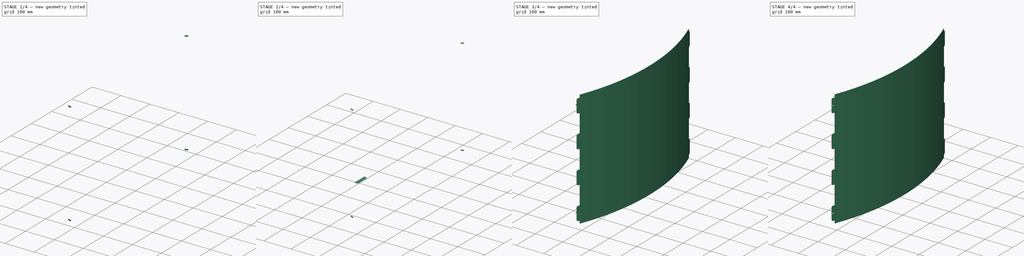
[diagram: build sequence overview — one tinted view per stage of 4, left to right]
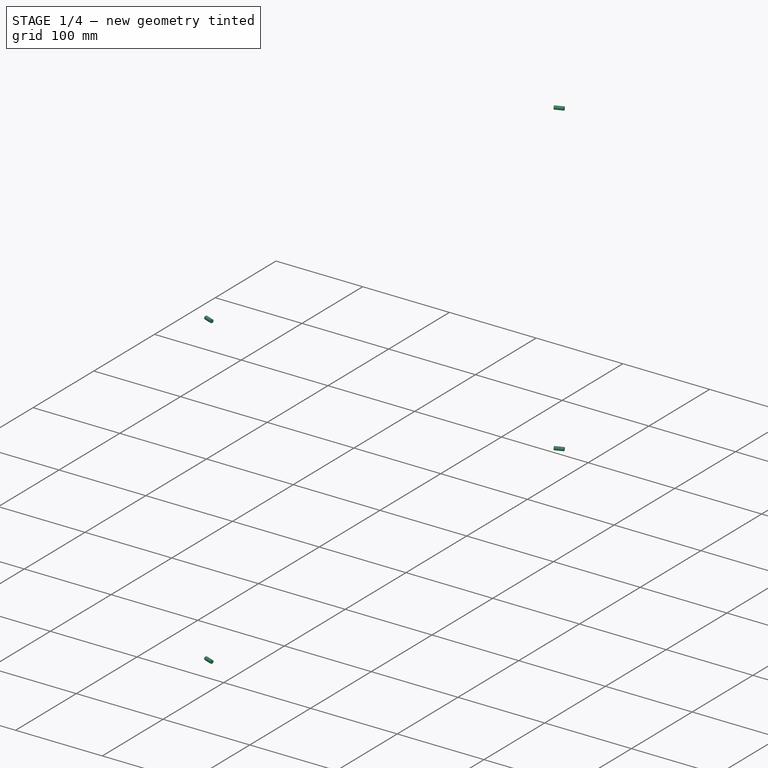
[diagram: stage 1 of 4 — iso view after this stage's code; geometry added in this stage tinted green]
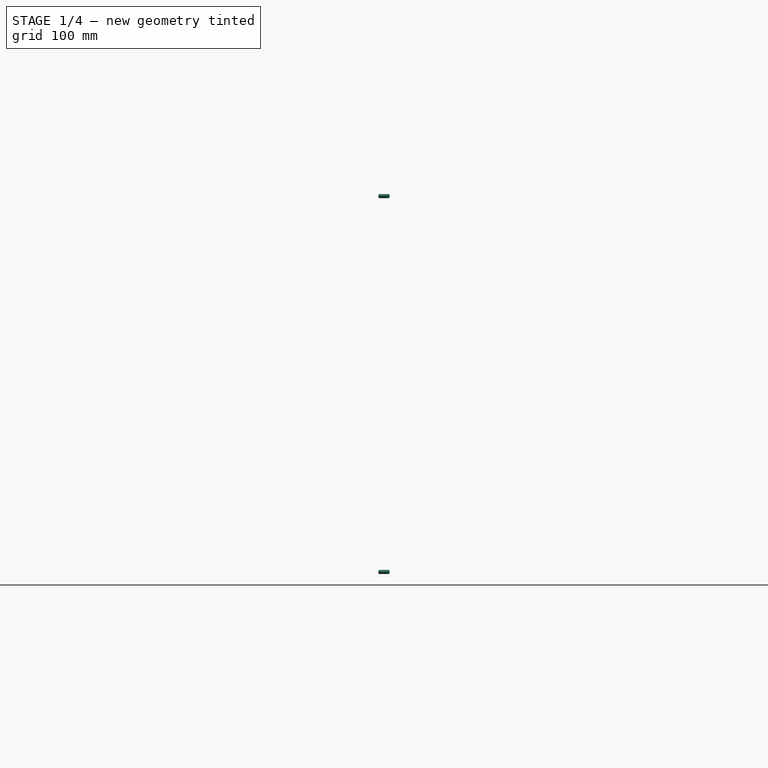
[diagram: stage 1 of 4 — front view after this stage's code; geometry added in this stage tinted green]
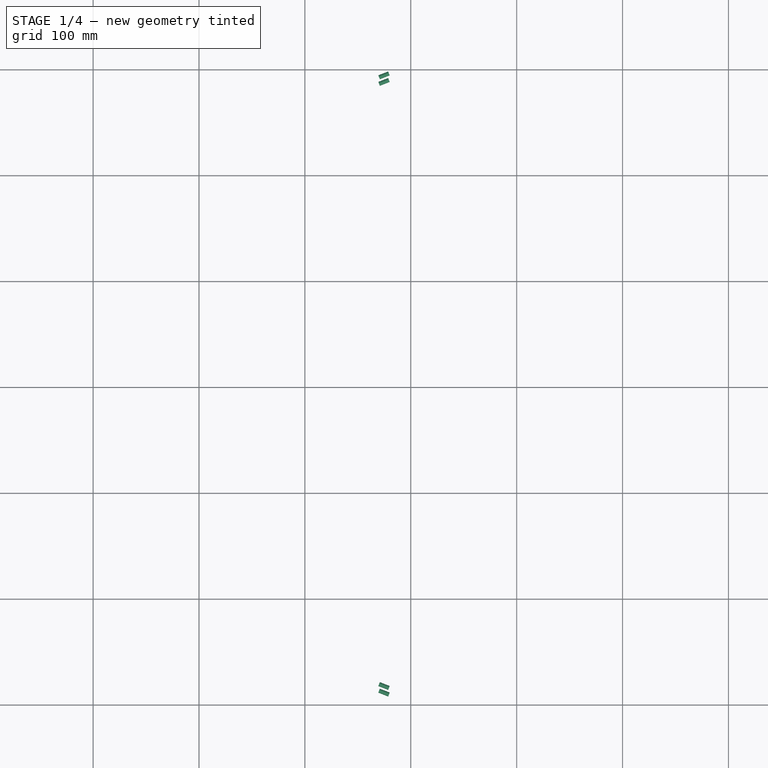
[diagram: stage 1 of 4 — top view after this stage's code; geometry added in this stage tinted green]
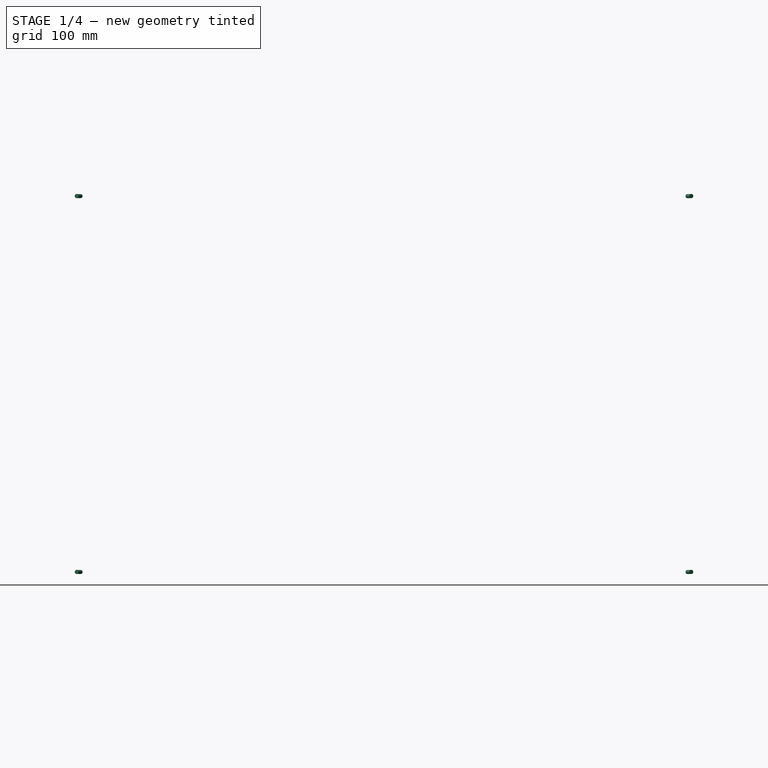
[diagram: stage 1 of 4 — right view after this stage's code; geometry added in this stage tinted green]
FCSTD DOCUMENT  (FreeCAD 1.1R38827 (Git))
Label: composit_stand3_bottom_shield_model
License: All rights reserved
LicenseURL: http://en.wikipedia.org/wiki/All_rights_reserved
objects: Part::FeaturePython×15, PartDesign::SubShapeBinder×3, PartDesign::FeaturePython×2, PartDesign::Body×2, App::Link×2, Part::Feature×2, Part::MultiFuse×2, PartDesign::Boolean×2, Part::Mirroring×1, Part::Extrusion×1, Part::Cylinder×1, Sketcher::SketchObject×1, PartDesign::CoordinateSystem×1
note: 38 computed .brp shape members not serialized (recipe doc carries the construction recipe); baked Part::Feature solids carry a one-line shape summary decoded from their .brp
EXTERNAL_REF file=composit_stand3_bottom_shield_main.FCStd obj=Sketch
EXTERNAL_REF file=composit_stand3_bottom_shield_main.FCStd obj=Sketch001
EXTERNAL_REF file=composit_stand3_bottom_shield_main.FCStd obj=LinearArray
EXTERNAL_REF file=composit_stand3_bottom_shield_main.FCStd obj=Placment

FEATURE [App::Link] Link  label="fix_placements"
  LinkedObject = -> <external composit_stand3_bottom_shield_main.FCStd>#LinearArray
FEATURE [Part::FeaturePython] Placment001  # WARN: FeaturePython — macro-defined, semantics opaque (R4)
  AttacherType = Attacher::AttachEngine3D
  ExposePlacement = true
  MarkerShape = 1
  MarkerSize = 50
  NumElements = 1
  Placement = pos=(0,0,0) rot=(-0.435046,-0.636685,0.636685;2.32089rad)
  Type = lattice2AttachablePlacement.AttachablePlacement
  isLattice = 1
  expr: .Placement.Rotation.Yaw = composit_stand3_bottom_shield_main#Sketch.Constraints.angle
FEATURE [Part::Cylinder] Cylinder  label="fix_cyl"
  Angle = 360
  AttacherType = Attacher::AttachEngine3D
  FirstAngle = 0
  Height = 10
  Radius = 2
  SecondAngle = 0
FEATURE [Part::FeaturePython] LinearArray  # WARN: FeaturePython — macro-defined, semantics opaque (R4)
  Alignment = 0
  CellStart = A1
  Count = 2
  Dir = (0,0,1)
  DirIsDriven = true
  DistributionLaw = 0
  DrivenProperty = 1
  EndInclusive = true
  ExposePlacement = false
  GeneratorMode = 0
  MarkerShape = 1
  MarkerSize = 0
  NumElements = 2
  OrientMode = 0
  Point = (0,0,0)
  PointIsDriven = true
  Reverse = false
  SpanEnd = 390
  SpanStart = 35
  Step = 355
  Type = lattice2LinearArray.LinearArray
  VSGVersion = 1
  Values = 35.0 | 390.0
  ValuesSource = 2
  isLattice = 1
  expr: SpanEnd = <<fix_placements>>.SpanEnd
  expr: SpanStart = <<fix_placements>>.SpanStart
FEATURE [Part::FeaturePython] Placment002  # WARN: FeaturePython — macro-defined, semantics opaque (R4)
  AttacherType = Attacher::AttachEngine3D
  AttachmentOffset = pos=(5.5,0,0) rot=(0,0,1;0rad)
  AttachmentSupport = -> [Placment001]
  ExposePlacement = true
  MapMode = 2
  MarkerShape = 1
  MarkerSize = 10
  NumElements = 1
  Placement = pos=(-1.99881,5.12394,-3e-16) rot=(0.435046,0.636685,-0.636685;3.96229rad)
  Type = lattice2AttachablePlacement.AttachablePlacement
  isLattice = 1
FEATURE [Part::FeaturePython] Populate003  label="Populate LinearArray with Placment002"  # WARN: FeaturePython — macro-defined, semantics opaque (R4)
  Copying = 0
  ExposePlacement = false
  MarkerShape = 1
  MarkerSize = 0
  NumElements = 2
  Object = -> Placment002
  OutputCompounding = 0
  PlacementsTo = -> LinearArray
  Referencing = 0
  Type = lattice2PopulateCopies.LatticePopulateCopies
  isLattice = 1
FEATURE [Sketcher::SketchObject] Sketch
  ArcFitTolerance = 0
  ExternalGeometry = -> [Binder]
  FullyConstrained = true
  MakeInternals = false
  expr: Constraints[3] = composit_stand3_bottom_shield_main#<<main_sketch>>.Constraints.angle - 180 deg
  sketch-geometry (2):
    g0: LineSegment StartX=181.794 StartY=283.998 StartZ=0 EndX=292.58 EndY=0 EndZ=0
    g1: LineSegment StartX=292.58 StartY=0 StartZ=0 EndX=181.794 EndY=-283.998 EndZ=0
  constraints (5):
    c: Coincident(g0,g1)
    c: Symmetric(g1,g0,g-1)
    c: PointOnObject(g0,g-1)
    c: Angle(g0) = -1.19886
    c: Coincident(g0,g-3)
FEATURE [PartDesign::CoordinateSystem] Local_CS  label="base_LCS"
  AttacherType = Attacher::AttachEngine3D
  AttachmentSupport = -> [XY_Plane]
  MapMode = 5
FEATURE [Part::Feature] Link008  label="sector_plexiglass_material_0.30ansi001"
  Placement = pos=(0,0,0) rot=(0,0,1;1.5708rad)
  shape: bbox 58.56 x 590.7 x 425 mm, 70 faces (baked)
FEATURE [App::Link] Link009  label="edge_placement"
  LinkTransform = true
  LinkedObject = -> <external composit_stand3_bottom_shield_main.FCStd>#Placment
FEATURE [Part::FeaturePython] Populate004  label="Populate Placment with Populate LinearArray with Placment002"  # WARN: FeaturePython — macro-defined, semantics opaque (R4)
  Copying = 0
  ExposePlacement = false
  MarkerShape = 1
  MarkerSize = 0
  NumElements = 2
  Object = -> Populate003
  OutputCompounding = 0
  PlacementsTo = -> Link009
  Referencing = 0
  Type = lattice2PopulateCopies.LatticePopulateCopies
  isLattice = 1
FEATURE [Part::FeaturePython] Mirror001  label="Mirror001 of Populate Placment with Populate LinearArray with Placment002"  # WARN: FeaturePython — macro-defined, semantics opaque (R4)
  ExposePlacement = false
  FlipX = false
  FlipY = true
  FlipZ = false
  MarkerShape = 1
  MarkerSize = 0
  NumElements = 2
  Object = -> Populate004
  ObjectTraversal = 0
  Type = lattice2Mirror.LatticeMirror
  isLattice = 1
FEATURE [Part::FeaturePython] Join001  # WARN: FeaturePython — macro-defined, semantics opaque (R4)
  ExposePlacement = false
  Interleave = false
  Links = -> [Populate004,Mirror001]
  MarkerShape = 1
  MarkerSize = 0
  NumElements = 4
  Type = lattice2JoinArrays.JoinArrays
  isLattice = 1
FEATURE [Part::FeaturePython] Populate005  label="Populate Join001 with fix_cyl"  # WARN: FeaturePython — macro-defined, semantics opaque (R4)
  Copying = 0
  ExposePlacement = false
  MarkerShape = 1
  MarkerSize = 0
  NumElements = 0
  Object = -> Cylinder
  OutputCompounding = 1
  PlacementsTo = -> Join001
  Referencing = 0
  Type = lattice2PopulateCopies.LatticePopulateCopies
  isLattice = 0
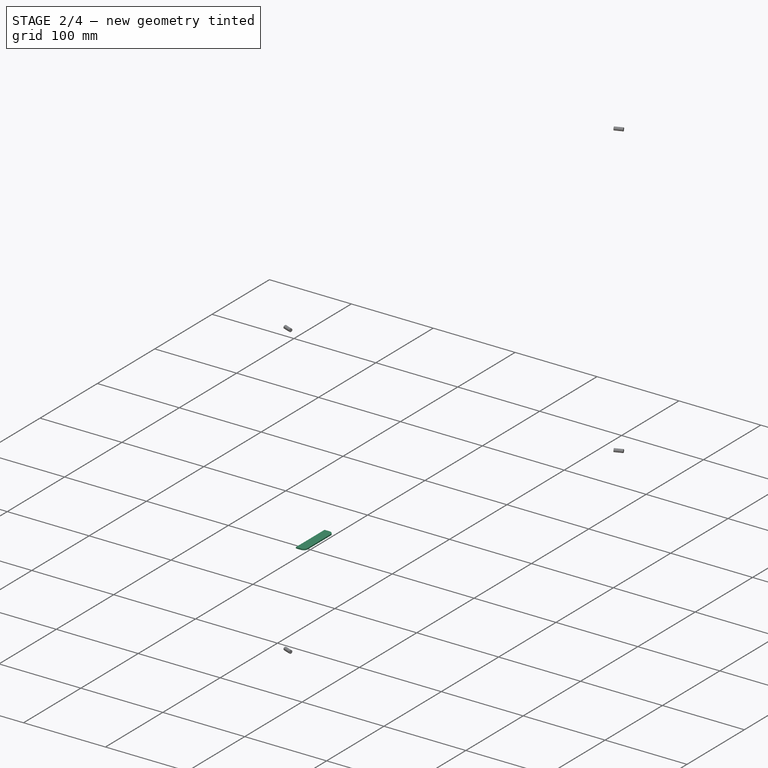
[diagram: stage 2 of 4 — iso view after this stage's code; geometry added in this stage tinted green]
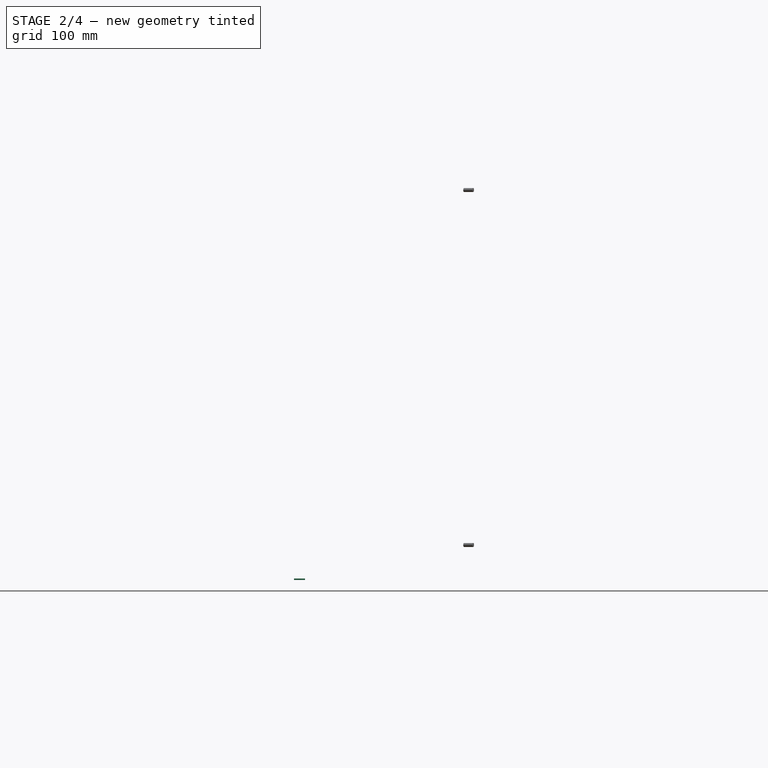
[diagram: stage 2 of 4 — front view after this stage's code; geometry added in this stage tinted green]
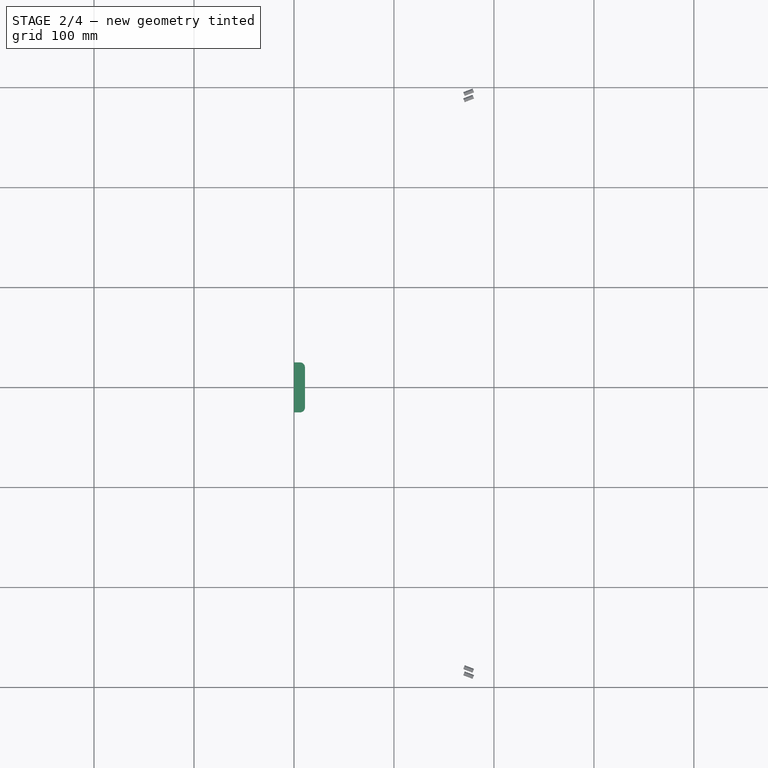
[diagram: stage 2 of 4 — top view after this stage's code; geometry added in this stage tinted green]
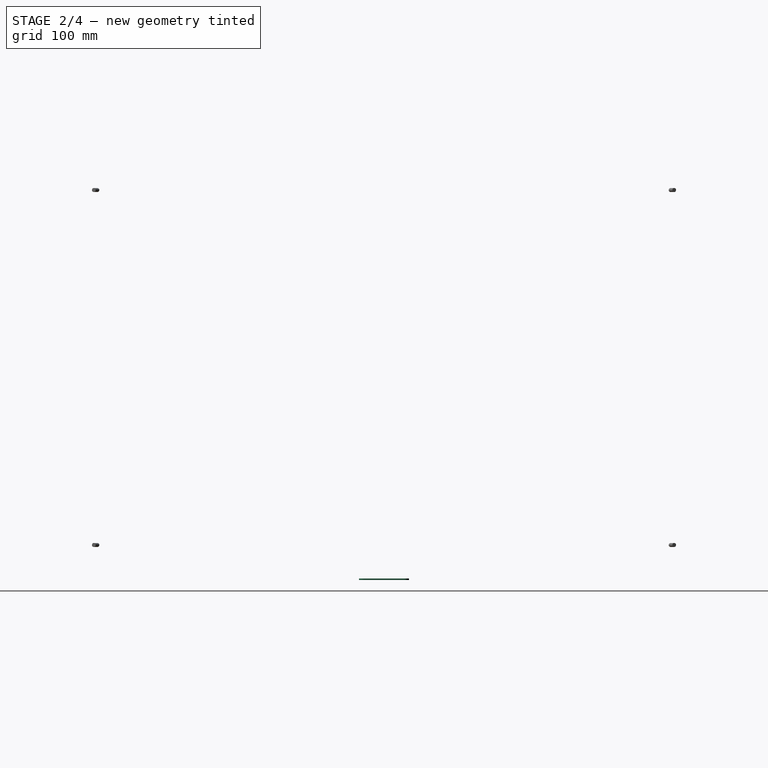
[diagram: stage 2 of 4 — right view after this stage's code; geometry added in this stage tinted green]
FEATURE [PartDesign::SubShapeBinder] Binder
  BindCopyOnChange = 0
  BindMode = 0
  ClaimChildren = true
  Fuse = false
  MakeFace = true
  OffsetFill = false
  OffsetIntersection = false
  OffsetJoinType = 0
  OffsetOpenResult = false
  PartialLoad = false
  Relative = false
  Support = -> [<external composit_stand3_bottom_shield_main.FCStd>#Sketch]
  _Version = 2
FEATURE [PartDesign::SubShapeBinder] Binder001
  BindCopyOnChange = 0
  BindMode = 0
  ClaimChildren = true
  Context = -> Body [Binder001.]
  Fuse = false
  MakeFace = true
  OffsetFill = false
  OffsetIntersection = false
  OffsetJoinType = 0
  OffsetOpenResult = false
  PartialLoad = false
  Relative = false
  Support = -> [Sketch]
  _Version = 2
FEATURE [PartDesign::FeaturePython] BaseBend  # WARN: FeaturePython — macro-defined, semantics opaque (R4)
  BendSide = 0
  BendSketch = -> Binder001
  MidPlane = false
  Reverse = false
  Suppressed = false
  length = 425
  radius = 779.545
  thickness = 1.5
  expr: radius = composit_stand3_bottom_shield_main#<<main_sketch>>.Constraints.r - 5 mm
FEATURE [PartDesign::Body] Body001
  AllowCompound = false
  Origin = -> Origin001
FEATURE [PartDesign::SubShapeBinder] Binder002
  BindCopyOnChange = 0
  BindMode = 0
  ClaimChildren = true
  Fuse = false
  MakeFace = true
  OffsetFill = false
  OffsetIntersection = false
  OffsetJoinType = 0
  OffsetOpenResult = false
  PartialLoad = false
  Relative = false
  Support = -> [<external composit_stand3_bottom_shield_main.FCStd>#Sketch001]
  _Version = 2
FEATURE [Part::Mirroring] Part__Mirroring001  label="Binder002 (Mirror #2)"
  Base = (0,0,0)
  Normal = (0,1,0)
  Source = -> Binder002
FEATURE [Part::FeaturePython] Connect001  # WARN: FeaturePython — macro-defined, semantics opaque (R4)
  Objects = -> [Binder002,Part__Mirroring001]
  Tolerance = 0
FEATURE [Part::Extrusion] Extrude
  Base = -> Connect001
  Dir = (0,0,1)
  DirMode = 2
  FaceMakerClass = Part::FaceMakerBullseye
  FaceMakerMode = 3
  LengthFwd = 1.5
  LengthRev = 0
  Solid = true
  Symmetric = false
  expr: LengthFwd = <<BaseBend>>.thickness
FEATURE [Part::MultiFuse] Fusion001
  Shapes = -> [Populate005]
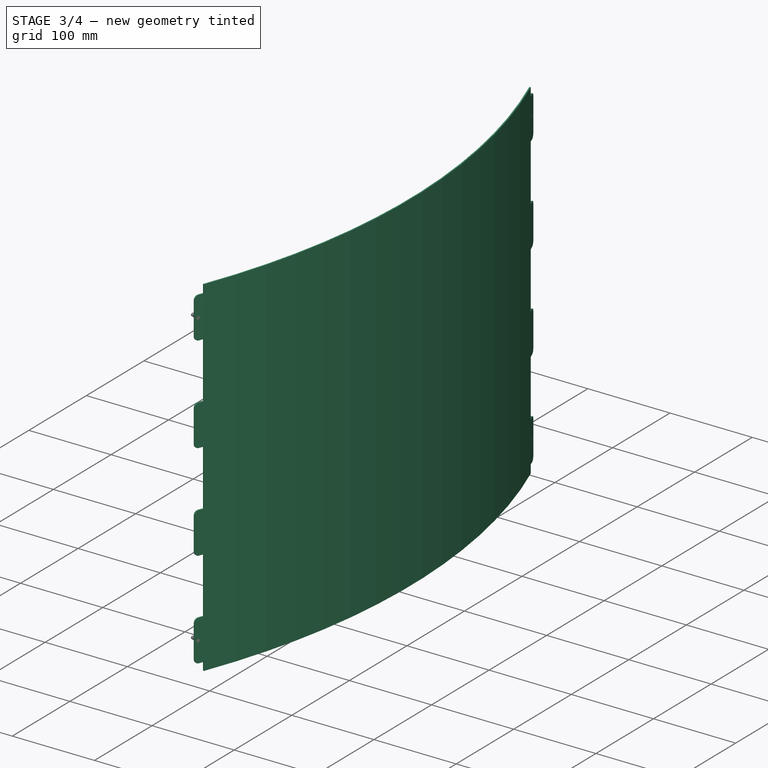
[diagram: stage 3 of 4 — iso view after this stage's code; geometry added in this stage tinted green]
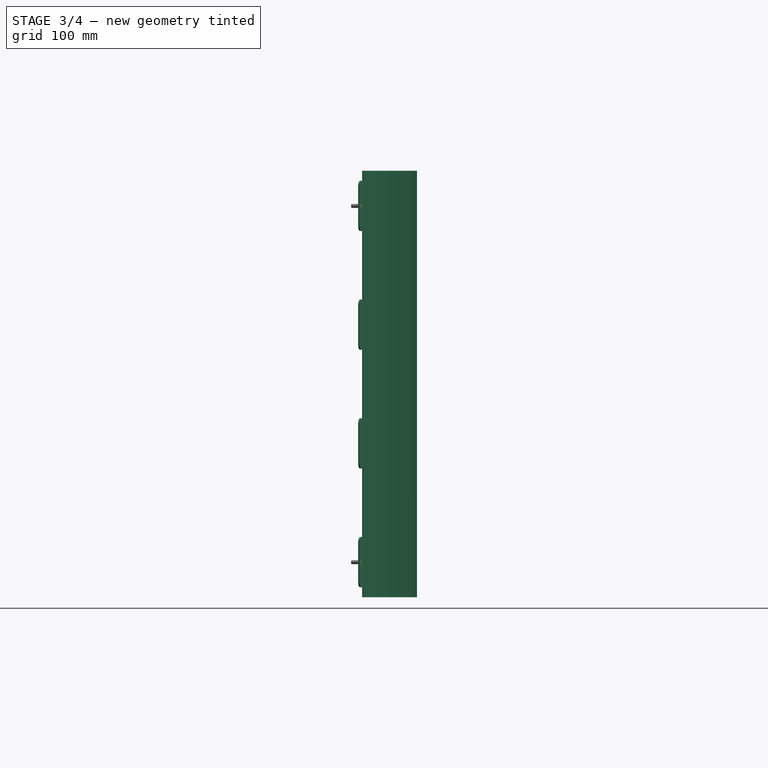
[diagram: stage 3 of 4 — front view after this stage's code; geometry added in this stage tinted green]
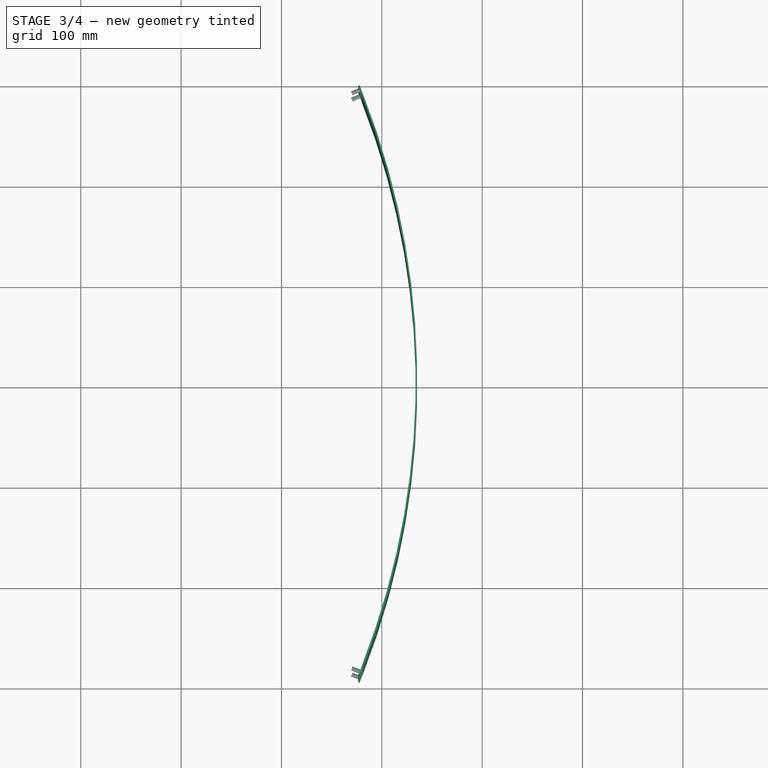
[diagram: stage 3 of 4 — top view after this stage's code; geometry added in this stage tinted green]
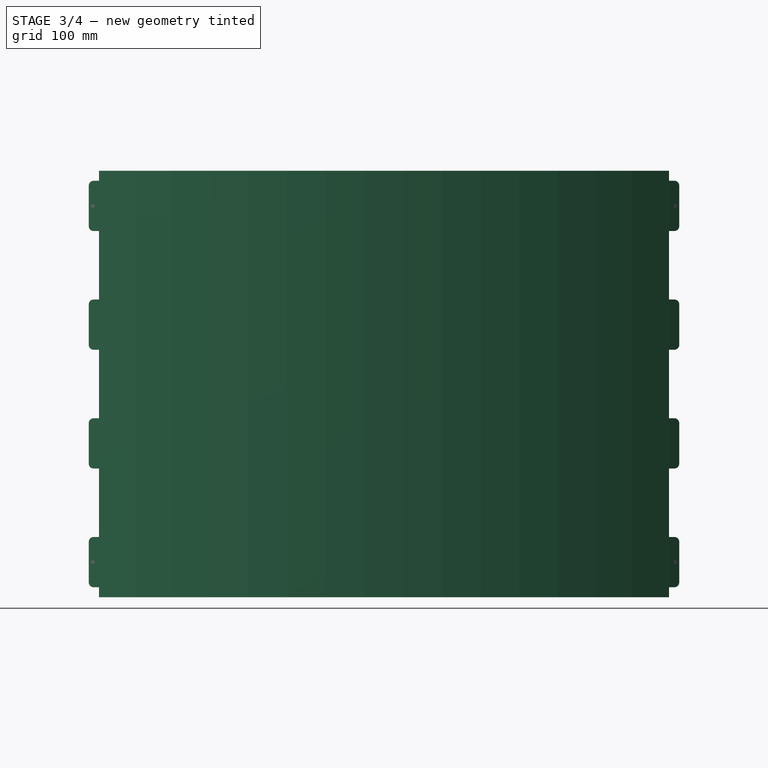
[diagram: stage 3 of 4 — right view after this stage's code; geometry added in this stage tinted green]
FEATURE [Part::Feature] Body002  label="bottom_shield001"
  shape: bbox 67.07 x 590.7 x 425 mm, 66 faces (baked)
FEATURE [Part::FeaturePython] Placment  # WARN: FeaturePython — macro-defined, semantics opaque (R4)
  AttacherType = Attacher::AttachEngine3D
  AttachmentSupport = -> [Binder]
  ExposePlacement = true
  MapMode = 1
  MarkerShape = 1
  MarkerSize = 50
  NumElements = 1
  Placement = pos=(181.794,283.998,0) rot=(0,0,1;0rad)
  Type = lattice2AttachablePlacement.AttachablePlacement
  isLattice = 1
FEATURE [Part::FeaturePython] Populate  label="Populate Placment with fix_placements"  # WARN: FeaturePython — macro-defined, semantics opaque (R4)
  Copying = 0
  ExposePlacement = false
  MarkerShape = 1
  MarkerSize = 0
  NumElements = 4
  Object = -> Link
  OutputCompounding = 0
  PlacementsTo = -> Placment
  Referencing = 0
  Type = lattice2PopulateCopies.LatticePopulateCopies
  isLattice = 1
FEATURE [Part::FeaturePython] Populate001  label="Populate Populate Placment with fix_placements with Placment001"  # WARN: FeaturePython — macro-defined, semantics opaque (R4)
  Copying = 0
  ExposePlacement = false
  MarkerShape = 1
  MarkerSize = 0
  NumElements = 4
  Object = -> Placment001
  OutputCompounding = 0
  PlacementsTo = -> Populate
  Referencing = 0
  Type = lattice2PopulateCopies.LatticePopulateCopies
  isLattice = 1
FEATURE [Part::FeaturePython] Mirror  label="Mirror of Populate Populate Placment with fix_placements with Placment001"  # WARN: FeaturePython — macro-defined, semantics opaque (R4)
  ExposePlacement = false
  FlipX = false
  FlipY = true
  FlipZ = false
  MarkerShape = 1
  MarkerSize = 0
  NumElements = 4
  Object = -> Populate001
  ObjectTraversal = 0
  Type = lattice2Mirror.LatticeMirror
  isLattice = 1
FEATURE [Part::FeaturePython] Join  # WARN: FeaturePython — macro-defined, semantics opaque (R4)
  ExposePlacement = false
  Interleave = false
  Links = -> [Populate001,Mirror]
  MarkerShape = 1
  MarkerSize = 0
  NumElements = 8
  Type = lattice2JoinArrays.JoinArrays
  isLattice = 1
FEATURE [Part::FeaturePython] Populate002  label="Populate Populate Populate Placment with fix_placements with Placment001 with Extrude"  # WARN: FeaturePython — macro-defined, semantics opaque (R4)
  Copying = 0
  ExposePlacement = false
  MarkerShape = 1
  MarkerSize = 0
  NumElements = 0
  Object = -> Extrude
  OutputCompounding = 1
  PlacementsTo = -> Join
  Referencing = 0
  Type = lattice2PopulateCopies.LatticePopulateCopies
  isLattice = 0
FEATURE [Part::MultiFuse] Fusion
  Shapes = -> [Populate002]
FEATURE [PartDesign::Boolean] Boolean
  BaseFeature = -> BaseBend
  Group = -> [Fusion]
  Suppressed = false
  Type = 0
  UsePlacement = true
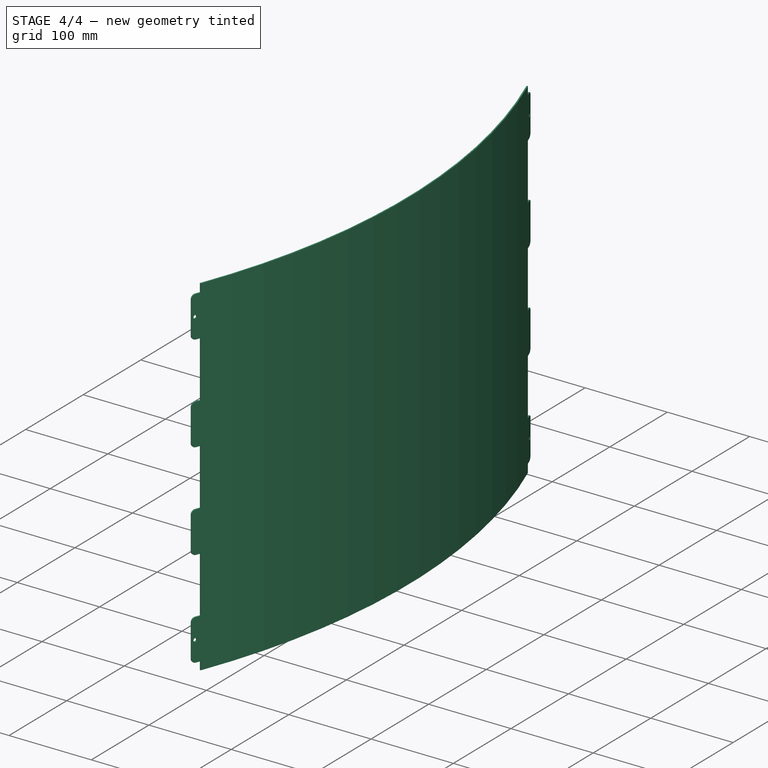
[diagram: stage 4 of 4 — iso view after this stage's code; geometry added in this stage tinted green]
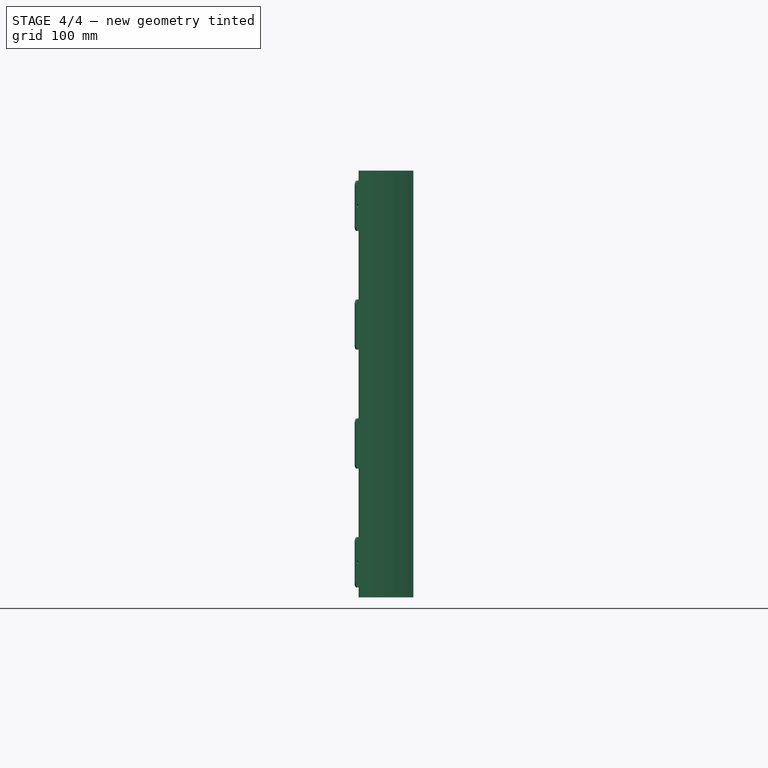
[diagram: stage 4 of 4 — front view after this stage's code; geometry added in this stage tinted green]
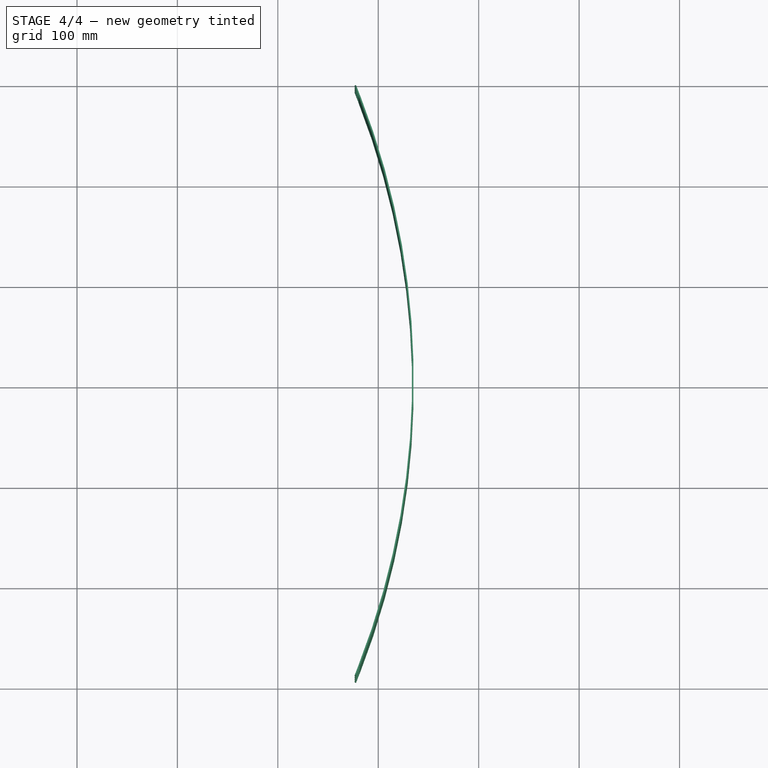
[diagram: stage 4 of 4 — top view after this stage's code; geometry added in this stage tinted green]
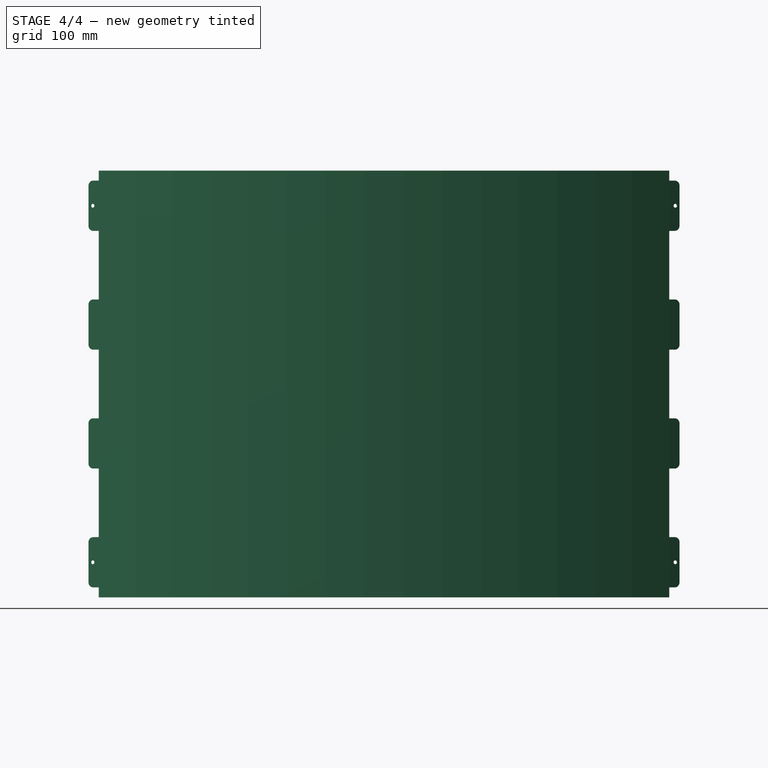
[diagram: stage 4 of 4 — right view after this stage's code; geometry added in this stage tinted green]
FEATURE [PartDesign::Boolean] Boolean001
  BaseFeature = -> Boolean
  Group = -> [Fusion001]
  Suppressed = false
  Type = 1
  UsePlacement = true
FEATURE [PartDesign::FeaturePython] Extend  # WARN: FeaturePython — macro-defined, semantics opaque (R4)
  BaseFeature = -> Boolean001
  Offset = 0.02
  Refine = true
  Suppressed = false
  UseSubtraction = false
  baseObject = -> Boolean001 [Face1]
  gap1 = 0
  gap2 = 0
  length = 0
FEATURE [PartDesign::Body] Body  label="bottom_shield"
  AllowCompound = false
  Group = -> [Binder001,BaseBend,Boolean,Boolean001,Extend,Local_CS]
  Origin = -> Origin
  Tip = -> Extend

RESOLVED EXTERNAL PARTS (link-assembly join: the EXTERNAL_REF files above that resolve inside this repo's crawl, each included once):
---- part composit_stand3_bottom_shield_main.FCStd = doc fcstd_857f5020a186 ----
FCSTD DOCUMENT  (FreeCAD 1.1R38827 (Git))
Label: composit_stand3_bottom_shield_main
License: All rights reserved
LicenseURL: http://en.wikipedia.org/wiki/All_rights_reserved
objects: Sketcher::SketchObject×2, Part::FeaturePython×2, Part::Feature×1
note: 7 computed .brp shape members not serialized (recipe doc carries the construction recipe); baked Part::Feature solids carry a one-line shape summary decoded from their .brp
EXTERNAL_REF file=composit_stand3_main.FCStd obj=Sketch

FEATURE [Sketcher::SketchObject] Sketch  label="main_sketch"
  ArcFitTolerance = 0
  FullyConstrained = true
  MakeInternals = false
  expr: Constraints[5] = composit_stand3_main#<<main_sketch>>.Constraints.end_width / 2
  sketch-geometry (6):
    g0: LineSegment [constr] StartX=0 StartY=0 StartZ=0 EndX=168.8 EndY=292.37 EndZ=0
    g1: LineSegment [constr] StartX=168.8 StartY=292.37 StartZ=0 EndX=181.357 EndY=285.12 EndZ=0
    g2: LineSegment [constr] StartX=181.357 StartY=285.12 StartZ=0 EndX=174.606 EndY=302.427 EndZ=0
    g3: ArcOfCircle CenterX=-549.544 CenterY=0 CenterZ=0 NormalX=0 NormalY=0 NormalZ=1 AngleXU=0 Radius=784.545 StartAngle=0 EndAngle=0.370402
    g4: LineSegment [constr] StartX=181.357 StartY=285.12 StartZ=0 EndX=16.7432 EndY=0 EndZ=0
    g5: LineSegment [constr] StartX=181.794 StartY=283.998 StartZ=0 EndX=180.396 EndY=283.455 EndZ=0
  constraints (24):
    c: PointOnObject(g3,g-1)
    c: Coincident(g-1,g0)
    c: Coincident(g0,g1)
    c: Perpendicular(g1,g0)
    c: Angle(g0) = 1.0472
    c: Distance(g1) = 14.5
    c: PointOnObject(g2,g0)
    c: Angle(g2) = 1.94273  'angle'
    c: DistanceX(g3) = 235.001  'offset'
    c: Distance(g0) = 337.6
    c: Radius(g3) = 784.545  'r'
    c: Tangent(g2,g3)
    c: PointOnObject(g3,g-1)
    c: DistanceX(g1) = 181.357  'x'
    c: DistanceY(g1) = 285.12  'y'
    c: Coincident(g2,g1)
    c: Coincident(g1,g4)
    c: PointOnObject(g4,g-1)
    c: Parallel(g4,g0)
    c: PointOnObject(g1,g3)
    c: Coincident(g5,g3)
    c: PointOnObject(g5,g4)
    c: Perpendicular(g3,g5)
    c: Distance(g5) = 1.5
FEATURE [Part::FeaturePython] LinearArray  label="fix_placements"  # WARN: FeaturePython — macro-defined, semantics opaque (R4)
  Alignment = 0
  CellStart = A1
  Count = 4
  Dir = (0,0,1)
  DirIsDriven = true
  DistributionLaw = 0
  DrivenProperty = 1
  EndInclusive = true
  ExposePlacement = false
  GeneratorMode = 0
  MarkerShape = 1
  MarkerSize = 0
  NumElements = 4
  OrientMode = 0
  Point = (0,0,0)
  PointIsDriven = true
  Reverse = false
  SpanEnd = 390
  SpanStart = 35
  Step = 118.333
  Type = lattice2LinearArray.LinearArray
  VSGVersion = 1
  Values = 35.0 | 153.33333333333331 | 271.66666666666663 | 390.0
  ValuesSource = 2
  isLattice = 1
  expr: SpanEnd = 425 mm - SpanStart
FEATURE [Sketcher::SketchObject] Sketch001
  ArcFitTolerance = 0
  FullyConstrained = true
  MakeInternals = false
  sketch-geometry (6):
    g0: LineSegment StartX=11 StartY=0 StartZ=0 EndX=11 EndY=20 EndZ=0
    g1: LineSegment StartX=0 StartY=25 StartZ=0 EndX=0 EndY=0 EndZ=0
    g2: ArcOfCircle CenterX=6 CenterY=20 CenterZ=0 NormalX=0 NormalY=0 NormalZ=1 AngleXU=0 Radius=5 StartAngle=0 EndAngle=1.5708
    g3: GeomPoint [constr] X=11 Y=25 Z=0
    g4: LineSegment StartX=6 StartY=25 StartZ=0 EndX=0 EndY=25 EndZ=0
    g5: GeomPoint [constr] X=11 Y=-25 Z=0
  constraints (14):
    c: PointOnObject(g0,g-1)
    c: Vertical(g0)
    c: PointOnObject(g1,g-2)
    c: Coincident(g1,g-1)
    c: PointOnObject(g3,g0)
    c: Tangent(g0,g2) = -1.5708
    c: Horizontal(g4)
    c: PointOnObject(g3,g4)
    c: Tangent(g4,g2) = -1.5708
    c: Symmetric(g5,g3,g-1)
    c: DistanceY(g5,g3) = 50  'height'
    c: DistanceX(g0) = 11
    c: Radius(g2) = 5
    c: Coincident(g1,g4)
FEATURE [Part::Feature] Link008  label="sector_plexiglass_material_0.30ansi001"
  Placement = pos=(0,0,0) rot=(0,0,1;1.5708rad)
  shape: bbox 58.56 x 590.7 x 425 mm, 70 faces (baked)
FEATURE [Part::FeaturePython] Placment  label="edge_placement"  # WARN: FeaturePython — macro-defined, semantics opaque (R4)
  AttacherType = Attacher::AttachEngine3D
  ExposePlacement = true
  MarkerShape = 1
  MarkerSize = 50
  NumElements = 1
  Placement = pos=(181.357,285.12,0) rot=(0,0,1;0rad)
  Type = lattice2AttachablePlacement.AttachablePlacement
  isLattice = 1
  expr: .Placement.Base.x = <<main_sketch>>.Constraints.x
  expr: .Placement.Base.y = <<main_sketch>>.Constraints.y
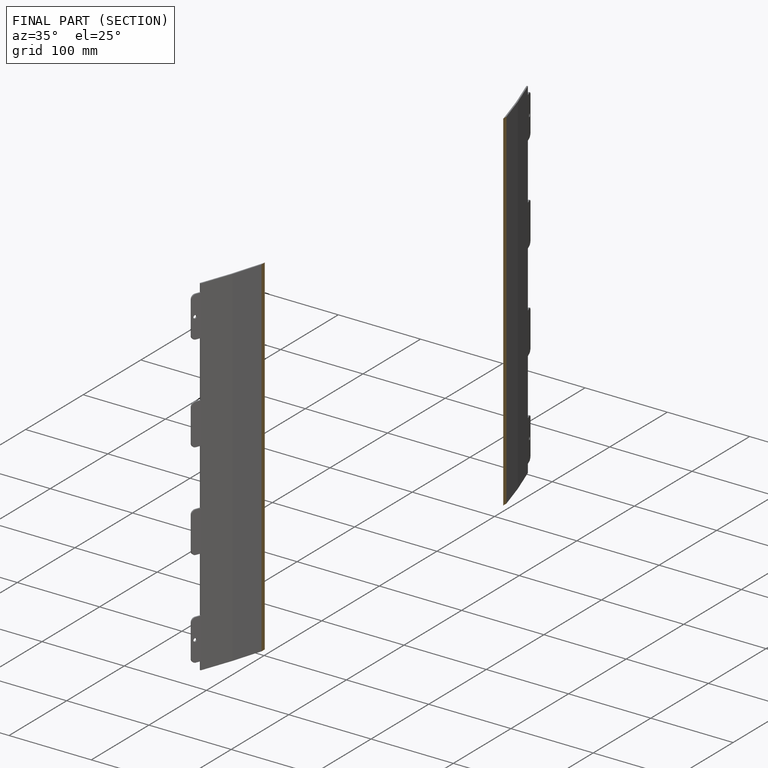
[diagram: finished part — half-section view (interior)]
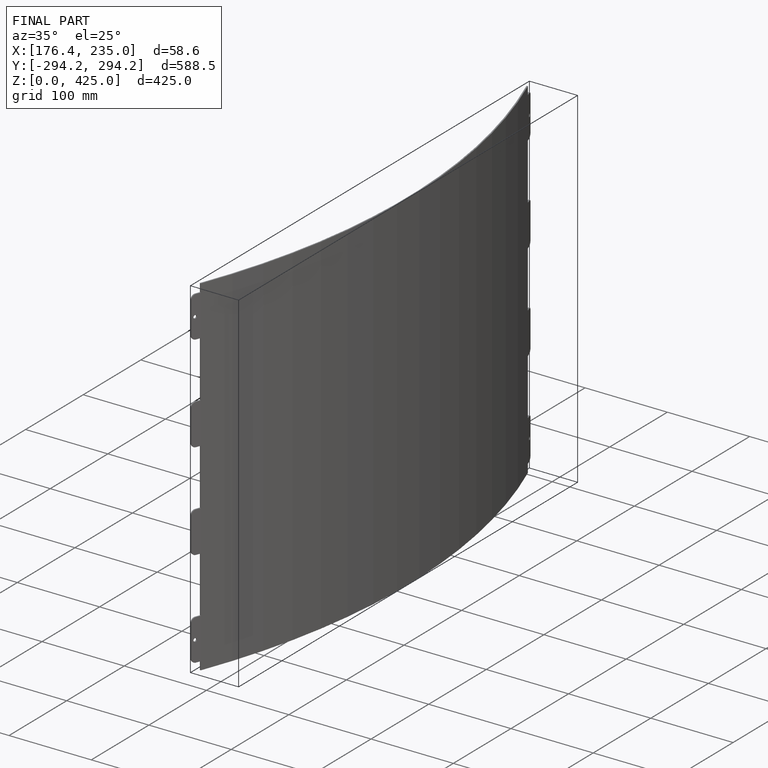
[diagram: finished part — iso view with bounding-box wireframe]
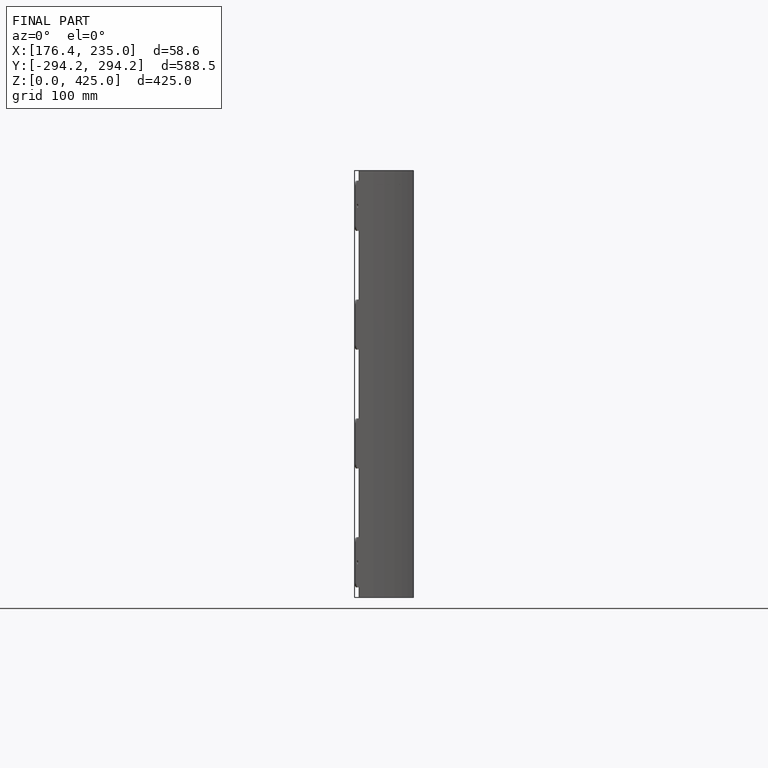
[diagram: finished part — front view with bounding-box wireframe]
